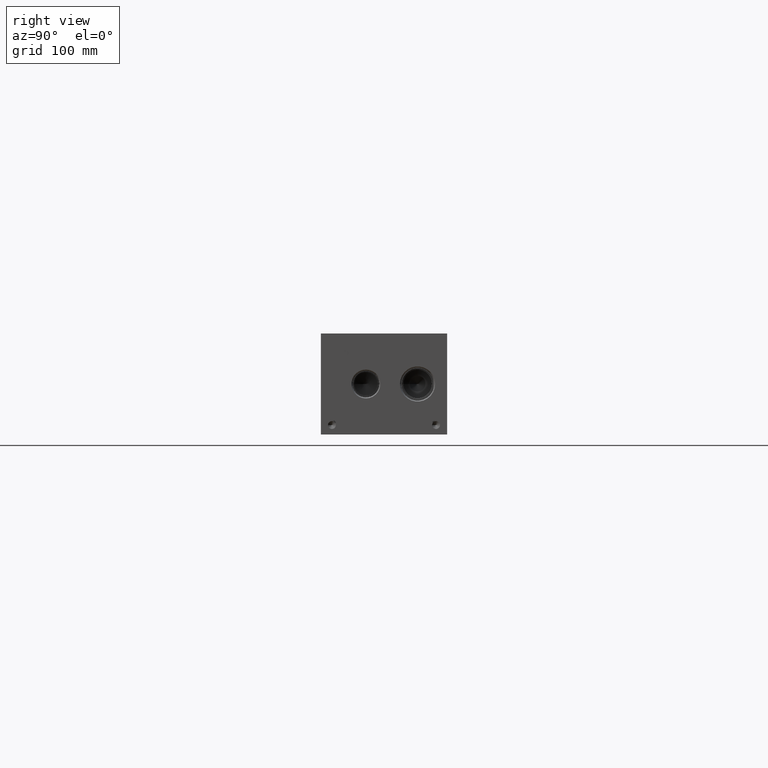
[diagram: clean part render]
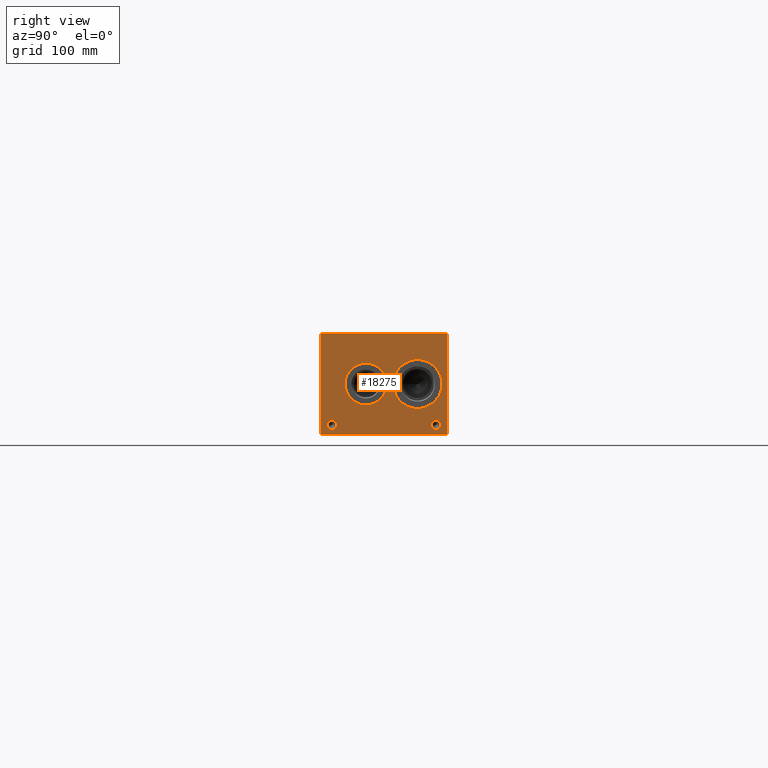
[diagram: same view with one face highlighted and labeled with its STEP entity id]
A machine part, right view. The second image highlights one B-rep face of the part: STEP entity #18275.
In plain terms, the highlighted planar face has unit normal (1, 0, 0).
Its self-contained STEP definition (entity closure, byte-faithful):
#302=CIRCLE('',#19290,4.7625);
#303=CIRCLE('',#19291,4.7625);
#304=CIRCLE('',#19292,4.7625);
#305=CIRCLE('',#19293,4.7625);
#306=CIRCLE('',#19294,21.0185);
#307=CIRCLE('',#19295,21.0185);
#308=CIRCLE('',#19296,24.5618);
#309=CIRCLE('',#19297,24.5618);
#923=FACE_BOUND('',#2824,.T.);
#924=FACE_BOUND('',#2825,.T.);
#925=FACE_BOUND('',#2826,.T.);
#926=FACE_BOUND('',#2827,.T.);
#927=FACE_BOUND('',#2828,.T.);
#928=FACE_BOUND('',#2829,.T.);
#1127=B_SPLINE_CURVE_WITH_KNOTS('',2,(#25254,#25255,#25256,#25257),
 .UNSPECIFIED.,.F.,.F.,(3,1,3),(0.,1.,2.),.UNSPECIFIED.);
#1129=B_SPLINE_CURVE_WITH_KNOTS('',2,(#25275,#25276,#25277,#25278),
 .UNSPECIFIED.,.F.,.F.,(3,1,3),(0.,1.,2.),.UNSPECIFIED.);
#1131=B_SPLINE_CURVE_WITH_KNOTS('',2,(#25324,#25325,#25326,#25327),
 .UNSPECIFIED.,.F.,.F.,(3,1,3),(0.,1.,2.),.UNSPECIFIED.);
#1133=B_SPLINE_CURVE_WITH_KNOTS('',2,(#25342,#25343,#25344,#25345),
 .UNSPECIFIED.,.F.,.F.,(3,1,3),(0.,1.,2.),.UNSPECIFIED.);
#1814=FACE_OUTER_BOUND('',#2823,.T.);
#2823=EDGE_LOOP('',(#11892,#11893,#11894,#11895));
#2824=EDGE_LOOP('',(#11896,#11897,#11898,#11899,#11900,#11901,#11902,#11903));
#2825=EDGE_LOOP('',(#11904,#11905));
#2826=EDGE_LOOP('',(#11906,#11907));
#2827=EDGE_LOOP('',(#11908,#11909));
#2828=EDGE_LOOP('',(#11910,#11911));
#2829=EDGE_LOOP('',(#11912,#11913,#11914,#11915,#11916,#11917,#11918,#11919,
#11920));
#4001=LINE('',#25104,#5613);
#4005=LINE('',#25112,#5617);
#4008=LINE('',#25118,#5620);
#4011=LINE('',#25124,#5623);
#4014=LINE('',#25130,#5626);
#4017=LINE('',#25136,#5629);
#4020=LINE('',#25142,#5632);
#4023=LINE('',#25147,#5635);
#4041=LINE('',#25287,#5653);
#4044=LINE('',#25293,#5656);
#4047=LINE('',#25299,#5659);
#4050=LINE('',#25305,#5662);
#4053=LINE('',#25311,#5665);
#4057=LINE('',#25354,#5669);
#4058=LINE('',#25356,#5670);
#4059=LINE('',#25358,#5671);
#4060=LINE('',#25359,#5672);
#5613=VECTOR('',#20680,10.);
#5617=VECTOR('',#20686,10.);
#5620=VECTOR('',#20691,10.);
#5623=VECTOR('',#20696,10.);
#5626=VECTOR('',#20701,10.);
#5629=VECTOR('',#20706,10.);
#5632=VECTOR('',#20711,10.);
#5635=VECTOR('',#20716,10.);
#5653=VECTOR('',#20744,10.);
#5656=VECTOR('',#20749,10.);
#5659=VECTOR('',#20754,10.);
#5662=VECTOR('',#20759,10.);
#5665=VECTOR('',#20764,10.);
#5669=VECTOR('',#20772,10.);
#5670=VECTOR('',#20773,10.);
#5671=VECTOR('',#20774,10.);
#5672=VECTOR('',#20775,10.);
#7225=VERTEX_POINT('',#25102);
#7226=VERTEX_POINT('',#25103);
#7229=VERTEX_POINT('',#25111);
#7231=VERTEX_POINT('',#25117);
#7233=VERTEX_POINT('',#25123);
#7235=VERTEX_POINT('',#25129);
#7237=VERTEX_POINT('',#25135);
#7239=VERTEX_POINT('',#25141);
#7255=VERTEX_POINT('',#25252);
#7256=VERTEX_POINT('',#25253);
#7259=VERTEX_POINT('',#25274);
#7261=VERTEX_POINT('',#25286);
#7263=VERTEX_POINT('',#25292);
#7265=VERTEX_POINT('',#25298);
#7267=VERTEX_POINT('',#25304);
#7269=VERTEX_POINT('',#25310);
#7271=VERTEX_POINT('',#25323);
#7273=VERTEX_POINT('',#25352);
#7274=VERTEX_POINT('',#25353);
#7275=VERTEX_POINT('',#25355);
#7276=VERTEX_POINT('',#25357);
#7277=VERTEX_POINT('',#25360);
#7278=VERTEX_POINT('',#25361);
#7279=VERTEX_POINT('',#25364);
#7280=VERTEX_POINT('',#25365);
#7281=VERTEX_POINT('',#25368);
#7282=VERTEX_POINT('',#25369);
#7283=VERTEX_POINT('',#25372);
#7284=VERTEX_POINT('',#25373);
#9094=EDGE_CURVE('',#7225,#7226,#4001,.T.);
#9098=EDGE_CURVE('',#7229,#7225,#4005,.T.);
#9101=EDGE_CURVE('',#7231,#7229,#4008,.T.);
#9104=EDGE_CURVE('',#7233,#7231,#4011,.T.);
#9107=EDGE_CURVE('',#7235,#7233,#4014,.T.);
#9110=EDGE_CURVE('',#7237,#7235,#4017,.T.);
#9113=EDGE_CURVE('',#7239,#7237,#4020,.T.);
#9116=EDGE_CURVE('',#7226,#7239,#4023,.T.);
#9139=EDGE_CURVE('',#7255,#7256,#1127,.T.);
#9143=EDGE_CURVE('',#7259,#7255,#1129,.T.);
#9146=EDGE_CURVE('',#7261,#7259,#4041,.T.);
#9149=EDGE_CURVE('',#7263,#7261,#4044,.T.);
#9152=EDGE_CURVE('',#7265,#7263,#4047,.T.);
#9155=EDGE_CURVE('',#7267,#7265,#4050,.T.);
#9158=EDGE_CURVE('',#7269,#7267,#4053,.T.);
#9161=EDGE_CURVE('',#7271,#7269,#1131,.T.);
#9164=EDGE_CURVE('',#7256,#7271,#1133,.T.);
#9166=EDGE_CURVE('',#7273,#7274,#4057,.T.);
#9167=EDGE_CURVE('',#7274,#7275,#4058,.T.);
#9168=EDGE_CURVE('',#7276,#7275,#4059,.T.);
#9169=EDGE_CURVE('',#7273,#7276,#4060,.T.);
#9170=EDGE_CURVE('',#7277,#7278,#302,.T.);
#9171=EDGE_CURVE('',#7278,#7277,#303,.T.);
#9172=EDGE_CURVE('',#7279,#7280,#304,.T.);
#9173=EDGE_CURVE('',#7280,#7279,#305,.T.);
#9174=EDGE_CURVE('',#7281,#7282,#306,.T.);
#9175=EDGE_CURVE('',#7282,#7281,#307,.T.);
#9176=EDGE_CURVE('',#7283,#7284,#308,.T.);
#9177=EDGE_CURVE('',#7284,#7283,#309,.T.);
#11892=ORIENTED_EDGE('',*,*,#9166,.T.);
#11893=ORIENTED_EDGE('',*,*,#9167,.T.);
#11894=ORIENTED_EDGE('',*,*,#9168,.F.);
#11895=ORIENTED_EDGE('',*,*,#9169,.F.);
#11896=ORIENTED_EDGE('',*,*,#9094,.T.);
#11897=ORIENTED_EDGE('',*,*,#9116,.T.);
#11898=ORIENTED_EDGE('',*,*,#9113,.T.);
#11899=ORIENTED_EDGE('',*,*,#9110,.T.);
#11900=ORIENTED_EDGE('',*,*,#9107,.T.);
#11901=ORIENTED_EDGE('',*,*,#9104,.T.);
#11902=ORIENTED_EDGE('',*,*,#9101,.T.);
#11903=ORIENTED_EDGE('',*,*,#9098,.T.);
#11904=ORIENTED_EDGE('',*,*,#9170,.T.);
#11905=ORIENTED_EDGE('',*,*,#9171,.T.);
#11906=ORIENTED_EDGE('',*,*,#9172,.T.);
#11907=ORIENTED_EDGE('',*,*,#9173,.T.);
#11908=ORIENTED_EDGE('',*,*,#9174,.T.);
#11909=ORIENTED_EDGE('',*,*,#9175,.T.);
#11910=ORIENTED_EDGE('',*,*,#9176,.T.);
#11911=ORIENTED_EDGE('',*,*,#9177,.T.);
#11912=ORIENTED_EDGE('',*,*,#9139,.T.);
#11913=ORIENTED_EDGE('',*,*,#9164,.T.);
#11914=ORIENTED_EDGE('',*,*,#9161,.T.);
#11915=ORIENTED_EDGE('',*,*,#9158,.T.);
#11916=ORIENTED_EDGE('',*,*,#9155,.T.);
#11917=ORIENTED_EDGE('',*,*,#9152,.T.);
#11918=ORIENTED_EDGE('',*,*,#9149,.T.);
#11919=ORIENTED_EDGE('',*,*,#9146,.T.);
#11920=ORIENTED_EDGE('',*,*,#9143,.T.);
#17146=PLANE('',#19289);
#18275=ADVANCED_FACE('',(#1814,#923,#924,#925,#926,#927,#928),#17146,.T.);
#19289=AXIS2_PLACEMENT_3D('',#25351,#20770,#20771);
#19290=AXIS2_PLACEMENT_3D('',#25362,#20776,#20777);
#19291=AXIS2_PLACEMENT_3D('',#25363,#20778,#20779);
#19292=AXIS2_PLACEMENT_3D('',#25366,#20780,#20781);
#19293=AXIS2_PLACEMENT_3D('',#25367,#20782,#20783);
#19294=AXIS2_PLACEMENT_3D('',#25370,#20784,#20785);
#19295=AXIS2_PLACEMENT_3D('',#25371,#20786,#20787);
#19296=AXIS2_PLACEMENT_3D('',#25374,#20788,#20789);
#19297=AXIS2_PLACEMENT_3D('',#25375,#20790,#20791);
#20680=DIRECTION('',(0.,-1.,0.));
#20686=DIRECTION('',(0.,0.,-1.));
#20691=DIRECTION('',(0.,-1.,0.));
#20696=DIRECTION('',(0.,0.,-1.));
#20701=DIRECTION('',(0.,1.,0.));
#20706=DIRECTION('',(0.,0.,1.));
#20711=DIRECTION('',(0.,-1.,0.));
#20716=DIRECTION('',(0.,0.,1.));
#20744=DIRECTION('',(0.,1.,0.));
#20749=DIRECTION('',(0.,0.,1.));
#20754=DIRECTION('',(0.,-1.,0.));
#20759=DIRECTION('',(0.,0.,-1.));
#20764=DIRECTION('',(0.,-1.,0.));
#20770=DIRECTION('center_axis',(1.,0.,0.));
#20771=DIRECTION('ref_axis',(0.,1.,0.));
#20772=DIRECTION('',(0.,1.,0.));
#20773=DIRECTION('',(0.,0.,1.));
#20774=DIRECTION('',(0.,1.,0.));
#20775=DIRECTION('',(0.,0.,1.));
#20776=DIRECTION('center_axis',(-1.,0.,0.));
#20777=DIRECTION('ref_axis',(0.,1.,0.));
#20778=DIRECTION('center_axis',(-1.,0.,0.));
#20779=DIRECTION('ref_axis',(0.,1.,0.));
#20780=DIRECTION('center_axis',(-1.,0.,0.));
#20781=DIRECTION('ref_axis',(0.,1.,0.));
#20782=DIRECTION('center_axis',(-1.,0.,0.));
#20783=DIRECTION('ref_axis',(0.,1.,0.));
#20784=DIRECTION('center_axis',(-1.,0.,0.));
#20785=DIRECTION('ref_axis',(0.,0.,-1.));
#20786=DIRECTION('center_axis',(-1.,0.,0.));
#20787=DIRECTION('ref_axis',(0.,0.,-1.));
#20788=DIRECTION('center_axis',(-1.,0.,0.));
#20789=DIRECTION('ref_axis',(0.,1.,0.));
#20790=DIRECTION('center_axis',(-1.,0.,0.));
#20791=DIRECTION('ref_axis',(0.,1.,0.));
#25102=CARTESIAN_POINT('',(717.55,109.115765271453,77.724));
#25103=CARTESIAN_POINT('',(717.55,108.271843079914,77.724));
#25104=CARTESIAN_POINT('',(717.55,54.5578826357265,77.724));
#25111=CARTESIAN_POINT('',(717.55,109.115765271453,83.3227033194815));
#25112=CARTESIAN_POINT('',(717.55,109.115765271453,41.6613516597408));
#25117=CARTESIAN_POINT('',(717.55,111.246154218388,83.3227033194815));
#25118=CARTESIAN_POINT('',(717.55,55.623077109194,83.3227033194815));
#25123=CARTESIAN_POINT('',(717.55,111.246154218388,84.0739999046326));
#25124=CARTESIAN_POINT('',(717.55,111.246154218388,42.0369999523163));
#25129=CARTESIAN_POINT('',(717.55,106.141454132978,84.0739999046326));
#25130=CARTESIAN_POINT('',(717.55,53.0707270664892,84.0739999046326));
#25135=CARTESIAN_POINT('',(717.55,106.141454132978,83.3227033194815));
#25136=CARTESIAN_POINT('',(717.55,106.141454132978,41.6613516597408));
#25141=CARTESIAN_POINT('',(717.55,108.271843079914,83.3227033194815));
#25142=CARTESIAN_POINT('',(717.55,54.1359215399568,83.3227033194815));
#25147=CARTESIAN_POINT('',(717.55,108.271843079914,38.862));
#25252=CARTESIAN_POINT('',(717.55,26.8367672023594,83.6777681439707));
#25253=CARTESIAN_POINT('',(717.55,27.593209654532,82.159737372604));
#25254=CARTESIAN_POINT('Ctrl Pts',(717.55,26.8367672023594,83.6777681439707));
#25255=CARTESIAN_POINT('Ctrl Pts',(717.55,27.1918320268486,83.4359123939564));
#25256=CARTESIAN_POINT('Ctrl Pts',(717.55,27.593209654532,82.6897616758269));
#25257=CARTESIAN_POINT('Ctrl Pts',(717.55,27.593209654532,82.159737372604));
#25274=CARTESIAN_POINT('',(717.55,25.1746521543883,84.0739999046326));
#25275=CARTESIAN_POINT('Ctrl Pts',(717.55,25.1746521543883,84.0739999046326));
#25276=CARTESIAN_POINT('Ctrl Pts',(717.55,25.7406975267624,84.0739999046326));
#25277=CARTESIAN_POINT('Ctrl Pts',(717.55,26.533161048086,83.8887486918556));
#25278=CARTESIAN_POINT('Ctrl Pts',(717.55,26.8367672023594,83.6777681439707));
#25286=CARTESIAN_POINT('',(717.55,23.5794333776978,84.0739999046326));
#25287=CARTESIAN_POINT('',(717.55,11.7897166888489,84.0739999046326));
#25292=CARTESIAN_POINT('',(717.55,23.5794333776978,77.724));
#25293=CARTESIAN_POINT('',(717.55,23.5794333776978,38.862));
#25298=CARTESIAN_POINT('',(717.55,24.4233555692373,77.724));
#25299=CARTESIAN_POINT('',(717.55,12.2116777846186,77.724));
#25304=CARTESIAN_POINT('',(717.55,24.4233555692373,80.0910988299279));
#25305=CARTESIAN_POINT('',(717.55,24.4233555692373,40.0455494149639));
#25310=CARTESIAN_POINT('',(717.55,25.1386310852372,80.0910988299279));
#25311=CARTESIAN_POINT('',(717.55,12.5693155426186,80.0910988299279));
#25323=CARTESIAN_POINT('',(717.55,27.0374560162011,80.7497698086904));
#25324=CARTESIAN_POINT('Ctrl Pts',(717.55,27.0374560162011,80.7497698086904));
#25325=CARTESIAN_POINT('Ctrl Pts',(717.55,26.7081205268198,80.4255801863307));
#25326=CARTESIAN_POINT('Ctrl Pts',(717.55,25.8178855320861,80.0910988299279));
#25327=CARTESIAN_POINT('Ctrl Pts',(717.55,25.1386310852372,80.0910988299279));
#25342=CARTESIAN_POINT('Ctrl Pts',(717.55,27.593209654532,82.159737372604));
#25343=CARTESIAN_POINT('Ctrl Pts',(717.55,27.593209654532,81.7480680108774));
#25344=CARTESIAN_POINT('Ctrl Pts',(717.55,27.2998952343018,81.0070631597695));
#25345=CARTESIAN_POINT('Ctrl Pts',(717.55,27.0374560162011,80.7497698086904));
#25351=CARTESIAN_POINT('Origin',(717.55,0.,0.));
#25352=CARTESIAN_POINT('',(717.55,0.,0.));
#25353=CARTESIAN_POINT('',(717.55,127.,0.));
#25354=CARTESIAN_POINT('',(717.55,0.,0.));
#25355=CARTESIAN_POINT('',(717.55,127.,101.6));
#25356=CARTESIAN_POINT('',(717.55,127.,0.));
#25357=CARTESIAN_POINT('',(717.55,0.,101.6));
#25358=CARTESIAN_POINT('',(717.55,0.,101.6));
#25359=CARTESIAN_POINT('',(717.55,0.,0.));
#25360=CARTESIAN_POINT('',(717.55,120.6373,9.525));
#25361=CARTESIAN_POINT('',(717.55,111.1123,9.525));
#25362=CARTESIAN_POINT('Origin',(717.55,115.8748,9.525));
#25363=CARTESIAN_POINT('Origin',(717.55,115.8748,9.525));
#25364=CARTESIAN_POINT('',(717.55,15.8877,9.525));
#25365=CARTESIAN_POINT('',(717.55,6.3627,9.525));
#25366=CARTESIAN_POINT('Origin',(717.55,11.1252,9.525));
#25367=CARTESIAN_POINT('Origin',(717.55,11.1252,9.525));
#25368=CARTESIAN_POINT('',(717.55,45.2882,29.7815));
#25369=CARTESIAN_POINT('',(717.55,45.2882,71.8185));
#25370=CARTESIAN_POINT('Origin',(717.55,45.2882,50.8));
#25371=CARTESIAN_POINT('Origin',(717.55,45.2882,50.8));
#25372=CARTESIAN_POINT('',(717.55,121.8184,50.8));
#25373=CARTESIAN_POINT('',(717.55,72.6948,50.8));
#25374=CARTESIAN_POINT('Origin',(717.55,97.2566,50.8));
#25375=CARTESIAN_POINT('Origin',(717.55,97.2566,50.8));